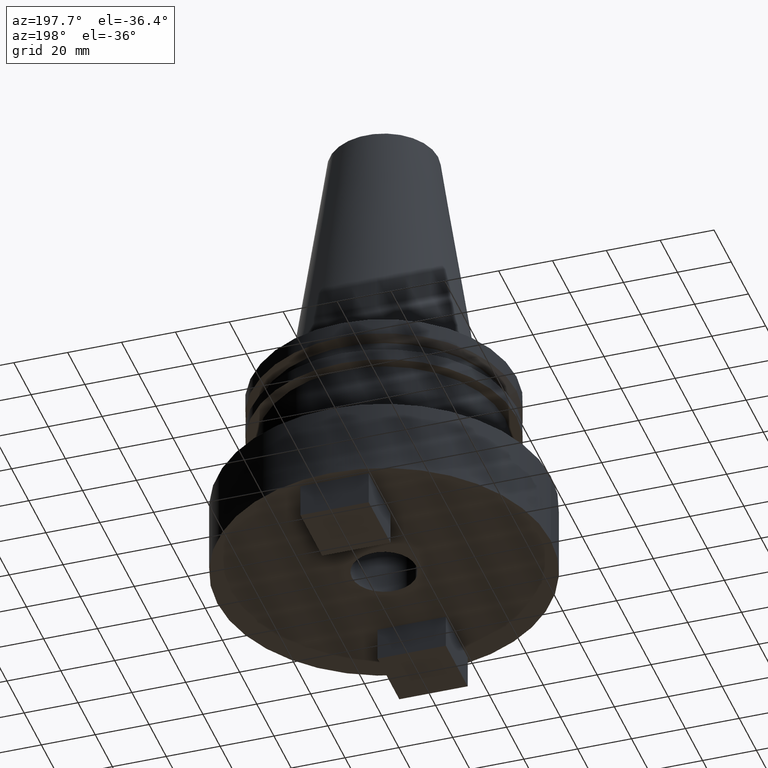
[diagram: clean part render]
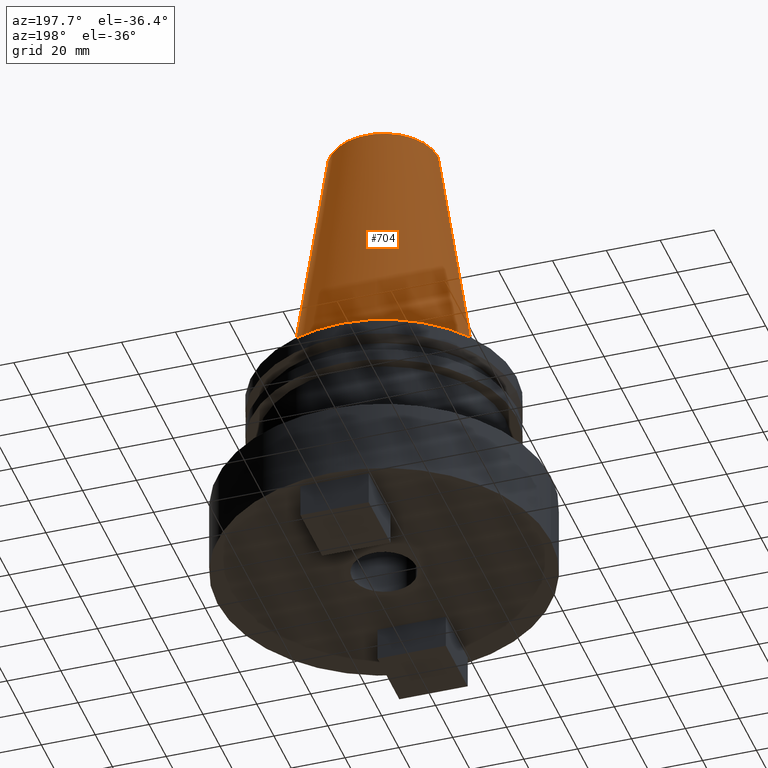
[diagram: same view with one face highlighted and labeled with its STEP entity id]
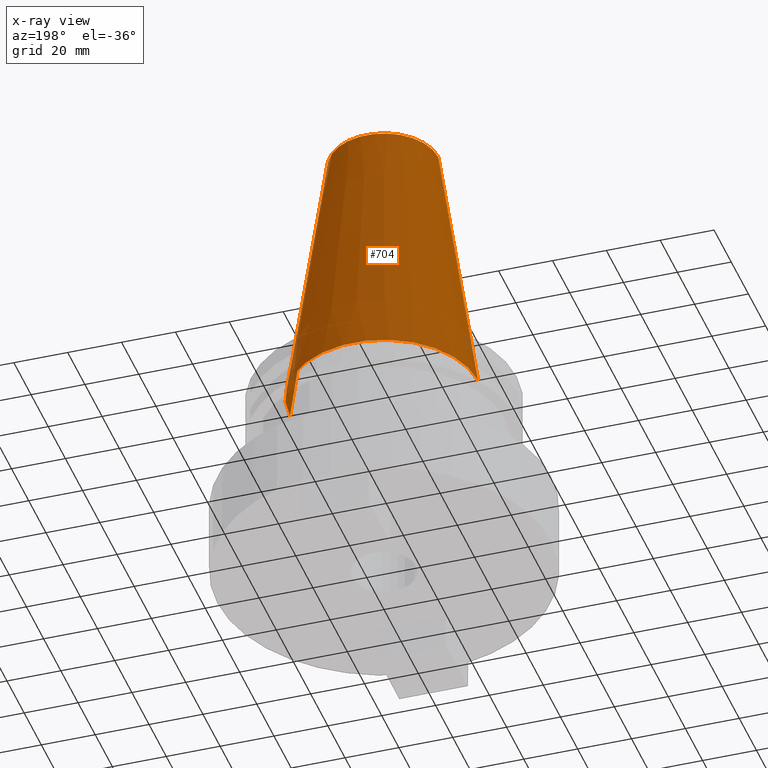
[diagram: x-ray of the same camera — body ghosted, the highlighted face saturated]
A machine part, auxiliary view. The second image highlights one B-rep face of the part: STEP entity #704.
The next image is the same camera in x-ray: the body ghosted, the highlighted face saturated — about 2% of this face is hidden behind the body in this view.
In plain terms, the highlighted conical surface has half-angle 8.297 deg.
Its self-contained STEP definition (entity closure, byte-faithful):
#78 = ORIENTED_EDGE ( 'NONE', *, *, #357, .T. ) ;
#97 = DIRECTION ( 'NONE',  ( -0.000000000000000000, -0.000000000000000000, 1.000000000000000000 ) ) ;
#105 = VERTEX_POINT ( 'NONE', #262 ) ;
#161 = VERTEX_POINT ( 'NONE', #334 ) ;
#167 = ORIENTED_EDGE ( 'NONE', *, *, #206, .T. ) ;
#171 = EDGE_CURVE ( 'NONE', #742, #161, #458, .T. ) ;
#206 = EDGE_CURVE ( 'NONE', #105, #892, #928, .T. ) ;
#208 = CARTESIAN_POINT ( 'NONE',  ( 0.000000000000000000, 0.000000000000000000, 0.000000000000000000 ) ) ;
#221 = AXIS2_PLACEMENT_3D ( 'NONE', #208, #765, #380 ) ;
#262 = CARTESIAN_POINT ( 'NONE',  ( 34.92499999999999005, 4.277078946022130098E-15, 0.000000000000000000 ) ) ;
#293 = CARTESIAN_POINT ( 'NONE',  ( -34.92499999999999005, 0.000000000000000000, 0.000000000000000000 ) ) ;
#318 = CARTESIAN_POINT ( 'NONE',  ( 34.92499999999999005, 4.277078946022130098E-15, 0.000000000000000000 ) ) ;
#334 = CARTESIAN_POINT ( 'NONE',  ( -20.10819343178871321, 0.000000000000000000, 101.5999999999999801 ) ) ;
#357 = EDGE_CURVE ( 'NONE', #742, #105, #975, .T. ) ;
#380 = DIRECTION ( 'NONE',  ( -1.000000000000000000, 0.000000000000000000, 0.000000000000000000 ) ) ;
#458 = CIRCLE ( 'NONE', #866, 20.10819343178871321 ) ;
#515 = EDGE_LOOP ( 'NONE', ( #901, #78, #167, #1055 ) ) ;
#546 = CARTESIAN_POINT ( 'NONE',  ( 0.000000000000000000, 0.000000000000000000, 0.000000000000000000 ) ) ;
#584 = EDGE_CURVE ( 'NONE', #161, #892, #696, .T. ) ;
#587 = AXIS2_PLACEMENT_3D ( 'NONE', #546, #97, #632 ) ;
#595 = CARTESIAN_POINT ( 'NONE',  ( 0.000000000000000000, 0.000000000000000000, 101.5999999999999801 ) ) ;
#632 = DIRECTION ( 'NONE',  ( 1.000000000000000000, 0.000000000000000000, 0.000000000000000000 ) ) ;
#652 = DIRECTION ( 'NONE',  ( 0.1443082272672999988, 1.767266086135277066E-17, -0.9895327864921755756 ) ) ;
#685 = FACE_OUTER_BOUND ( 'NONE', #515, .T. ) ;
#696 = LINE ( 'NONE', #293, #1008 ) ;
#704 = ADVANCED_FACE ( 'NONE', ( #685 ), #883, .T. ) ;
#713 = CARTESIAN_POINT ( 'NONE',  ( -34.92499999999999005, 0.000000000000000000, 0.000000000000000000 ) ) ;
#719 = VECTOR ( 'NONE', #652, 999.9999999999998863 ) ;
#742 = VERTEX_POINT ( 'NONE', #867 ) ;
#765 = DIRECTION ( 'NONE',  ( 0.000000000000000000, 0.000000000000000000, -1.000000000000000000 ) ) ;
#866 = AXIS2_PLACEMENT_3D ( 'NONE', #595, #995, #1000 ) ;
#867 = CARTESIAN_POINT ( 'NONE',  ( 20.10819343178871321, 3.369811209154858606E-15, 101.5999999999999801 ) ) ;
#868 = DIRECTION ( 'NONE',  ( -0.1443082272672999988, 0.000000000000000000, -0.9895327864921755756 ) ) ;
#883 = CONICAL_SURFACE ( 'NONE', #221, 34.92499999999999005, 0.1448138465474119452 ) ;
#892 = VERTEX_POINT ( 'NONE', #713 ) ;
#901 = ORIENTED_EDGE ( 'NONE', *, *, #171, .F. ) ;
#928 = CIRCLE ( 'NONE', #587, 34.92499999999999005 ) ;
#975 = LINE ( 'NONE', #318, #719 ) ;
#995 = DIRECTION ( 'NONE',  ( -0.000000000000000000, -0.000000000000000000, 1.000000000000000000 ) ) ;
#1000 = DIRECTION ( 'NONE',  ( 1.000000000000000000, 0.000000000000000000, 0.000000000000000000 ) ) ;
#1008 = VECTOR ( 'NONE', #868, 999.9999999999998863 ) ;
#1055 = ORIENTED_EDGE ( 'NONE', *, *, #584, .F. ) ;